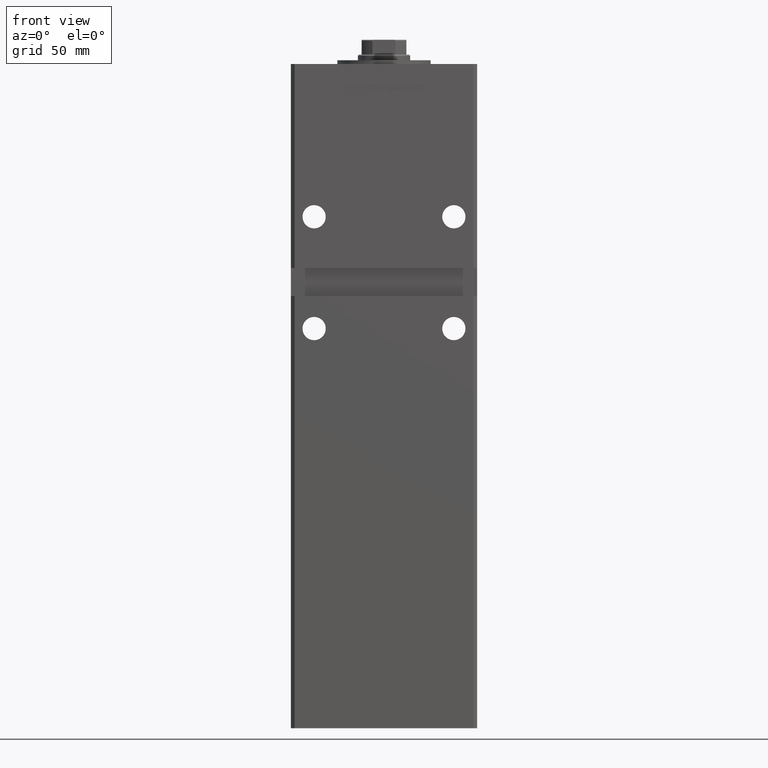
[diagram: clean part render]
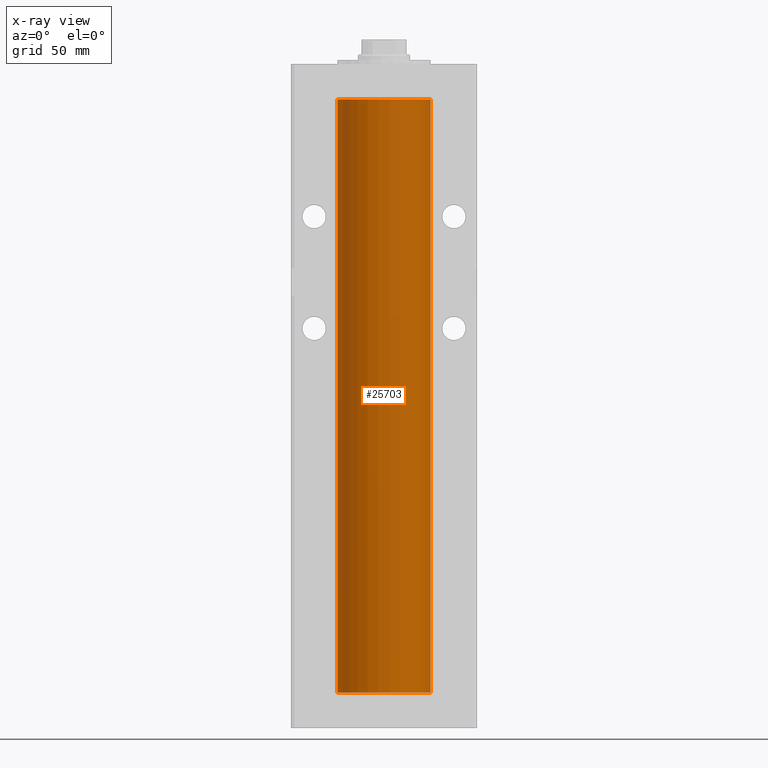
[diagram: x-ray — body ghosted, one internal face saturated and labeled with its STEP entity id]
A machine part, front view, then the same camera in x-ray: the body is ghosted and one INTERNAL B-rep face — a face not visible from any outside direction — is saturated and labeled: STEP entity #25703.
In plain terms, the highlighted cylindrical surface (partial cylindrical patch) has radius 25 mm, axis along (-0, -0, -1).
Its self-contained STEP definition (entity closure, byte-faithful):
#2839 = CARTESIAN_POINT ( 'NONE',  ( 25.00000000000000000, 3.061616997868383043E-15, 318.5000000000000000 ) ) ;
#5436 = EDGE_CURVE ( 'NONE', #52860, #39456, #32749, .T. ) ;
#5950 = ORIENTED_EDGE ( 'NONE', *, *, #5436, .T. ) ;
#6889 = VECTOR ( 'NONE', #47037, 1000.000000000000000 ) ;
#8303 = CARTESIAN_POINT ( 'NONE',  ( 25.00000000000000000, 3.061616997868383043E-15, 318.5000000000000000 ) ) ;
#10887 = CARTESIAN_POINT ( 'NONE',  ( -25.00000000000000000, 0.000000000000000000, 318.5000000000000000 ) ) ;
#11180 = EDGE_LOOP ( 'NONE', ( #11606, #5950, #21913, #32284 ) ) ;
#11327 = FACE_OUTER_BOUND ( 'NONE', #11180, .T. ) ;
#11606 = ORIENTED_EDGE ( 'NONE', *, *, #29016, .T. ) ;
#11851 = CYLINDRICAL_SURFACE ( 'NONE', #12679, 25.00000000000000000 ) ;
#11929 = CARTESIAN_POINT ( 'NONE',  ( -25.00000000000000000, 0.000000000000000000, 0.000000000000000000 ) ) ;
#11992 = DIRECTION ( 'NONE',  ( -0.000000000000000000, 0.000000000000000000, 1.000000000000000000 ) ) ;
#12679 = AXIS2_PLACEMENT_3D ( 'NONE', #40563, #25488, #16885 ) ;
#12807 = AXIS2_PLACEMENT_3D ( 'NONE', #48763, #11992, #28370 ) ;
#16885 = DIRECTION ( 'NONE',  ( -1.000000000000000000, 0.000000000000000000, 0.000000000000000000 ) ) ;
#16925 = DIRECTION ( 'NONE',  ( -0.000000000000000000, -0.000000000000000000, -1.000000000000000000 ) ) ;
#18077 = CARTESIAN_POINT ( 'NONE',  ( 25.00000000000000000, 3.061616997868383043E-15, 0.000000000000000000 ) ) ;
#21913 = ORIENTED_EDGE ( 'NONE', *, *, #33931, .F. ) ;
#23082 = AXIS2_PLACEMENT_3D ( 'NONE', #25892, #42254, #30184 ) ;
#25488 = DIRECTION ( 'NONE',  ( -0.000000000000000000, -0.000000000000000000, -1.000000000000000000 ) ) ;
#25703 = ADVANCED_FACE ( 'NONE', ( #11327 ), #11851, .F. ) ;
#25892 = CARTESIAN_POINT ( 'NONE',  ( 0.000000000000000000, 0.000000000000000000, 318.5000000000000000 ) ) ;
#28370 = DIRECTION ( 'NONE',  ( 1.000000000000000000, 0.000000000000000000, 0.000000000000000000 ) ) ;
#29016 = EDGE_CURVE ( 'NONE', #29984, #52860, #40193, .T. ) ;
#29984 = VERTEX_POINT ( 'NONE', #10887 ) ;
#30184 = DIRECTION ( 'NONE',  ( 1.000000000000000000, 0.000000000000000000, 0.000000000000000000 ) ) ;
#30667 = LINE ( 'NONE', #47291, #6889 ) ;
#31671 = CIRCLE ( 'NONE', #12807, 25.00000000000000000 ) ;
#32284 = ORIENTED_EDGE ( 'NONE', *, *, #41863, .F. ) ;
#32749 = LINE ( 'NONE', #8303, #44047 ) ;
#33931 = EDGE_CURVE ( 'NONE', #40638, #39456, #31671, .T. ) ;
#39456 = VERTEX_POINT ( 'NONE', #18077 ) ;
#40193 = CIRCLE ( 'NONE', #23082, 25.00000000000000000 ) ;
#40563 = CARTESIAN_POINT ( 'NONE',  ( 0.000000000000000000, 0.000000000000000000, 318.5000000000000000 ) ) ;
#40638 = VERTEX_POINT ( 'NONE', #11929 ) ;
#41863 = EDGE_CURVE ( 'NONE', #29984, #40638, #30667, .T. ) ;
#42254 = DIRECTION ( 'NONE',  ( -0.000000000000000000, 0.000000000000000000, 1.000000000000000000 ) ) ;
#44047 = VECTOR ( 'NONE', #16925, 1000.000000000000000 ) ;
#47037 = DIRECTION ( 'NONE',  ( -0.000000000000000000, -0.000000000000000000, -1.000000000000000000 ) ) ;
#47291 = CARTESIAN_POINT ( 'NONE',  ( -25.00000000000000000, 0.000000000000000000, 318.5000000000000000 ) ) ;
#48763 = CARTESIAN_POINT ( 'NONE',  ( 0.000000000000000000, 0.000000000000000000, 0.000000000000000000 ) ) ;
#52860 = VERTEX_POINT ( 'NONE', #2839 ) ;